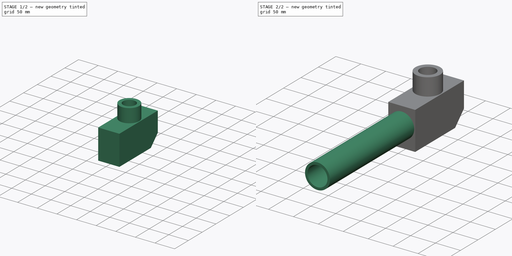
[diagram: build sequence overview — one tinted view per stage of 2, left to right]
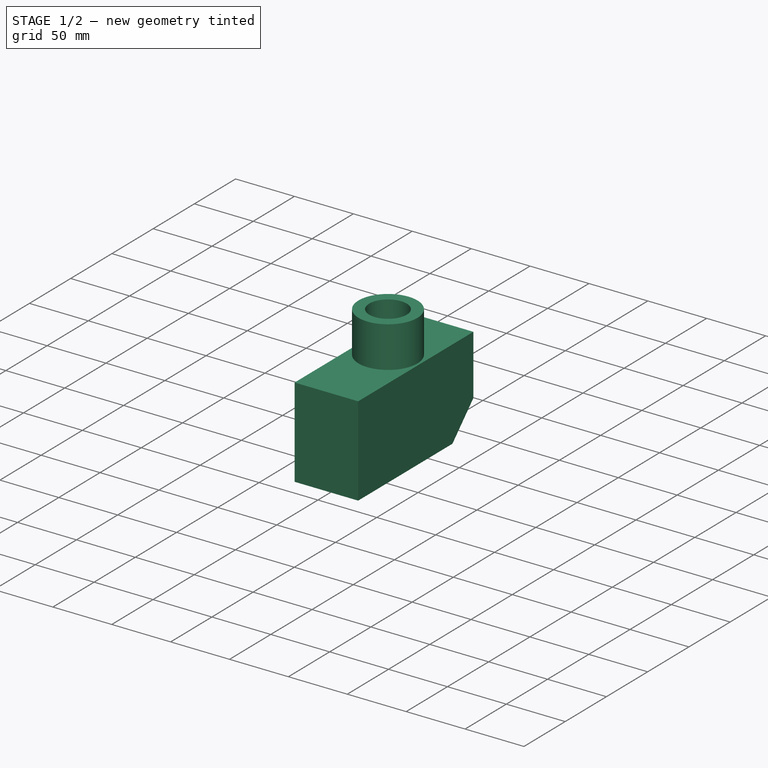
[diagram: stage 1 of 2 — iso view after this stage's code; geometry added in this stage tinted green]
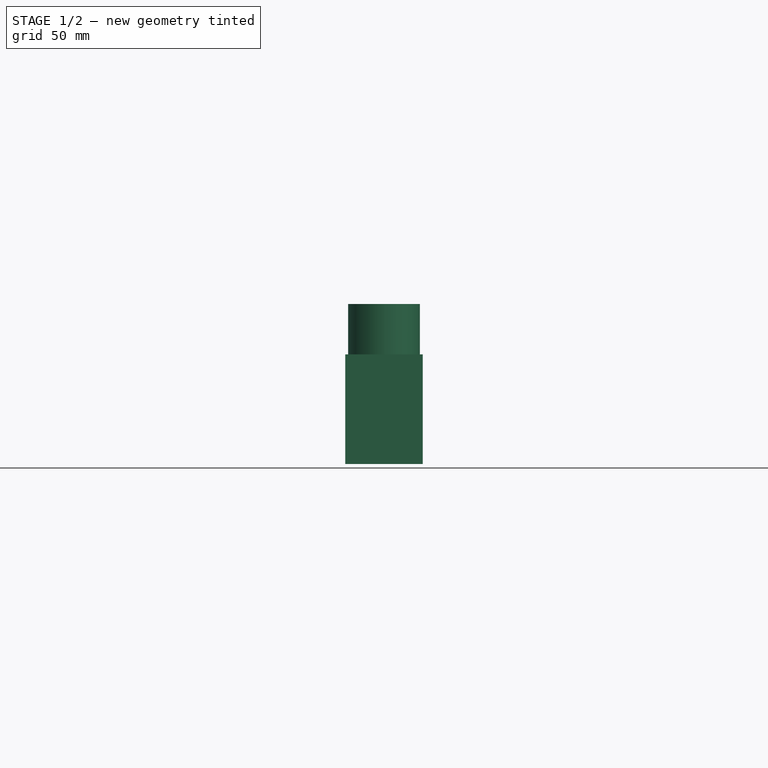
[diagram: stage 1 of 2 — front view after this stage's code; geometry added in this stage tinted green]
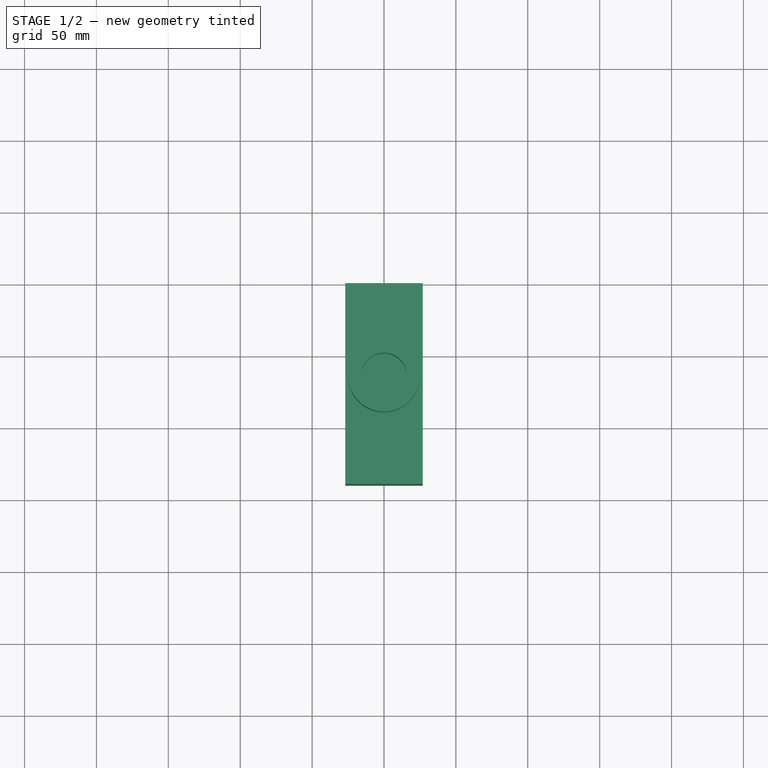
[diagram: stage 1 of 2 — top view after this stage's code; geometry added in this stage tinted green]
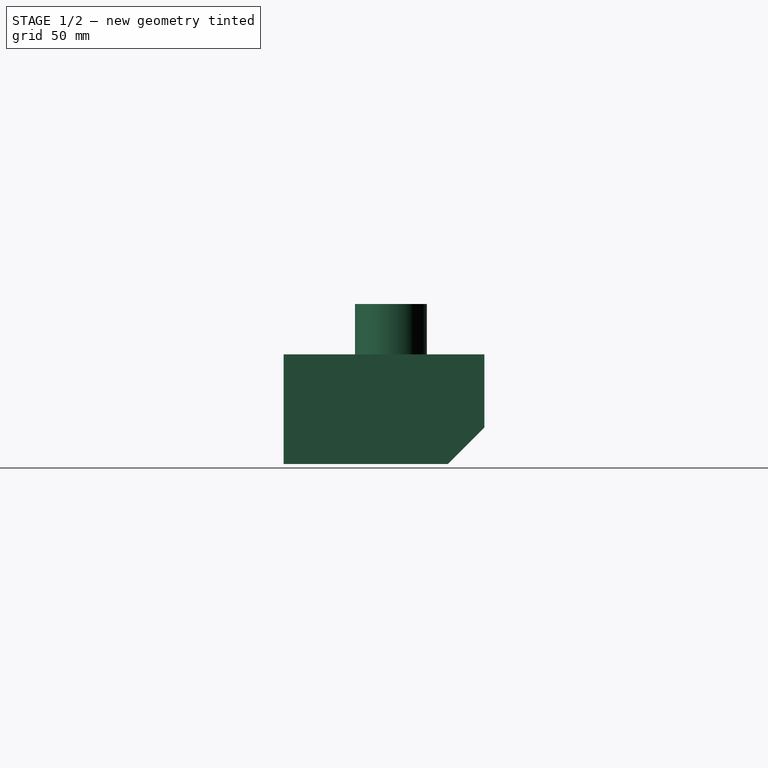
[diagram: stage 1 of 2 — right view after this stage's code; geometry added in this stage tinted green]
FCSTD DOCUMENT  (FreeCAD 0.19R24291 (Git))
Label: PST_Only
License: All rights reserved
LicenseURL: http://en.wikipedia.org/wiki/All_rights_reserved
objects: Sketcher::SketchObject×4, PartDesign::Pad×3, Image::ImagePlane×1, Spreadsheet::Sheet×1, PartDesign::Pocket×1, PartDesign::Body×1
note: 13 computed .brp shape members not serialized (recipe doc carries the construction recipe); baked Part::Feature solids carry a one-line shape summary decoded from their .brp

FEATURE [Image::ImagePlane] ImagePlane001
  Placement = pos=(0,-305,0) rot=(0.57735,0.57735,0.57735;2.0944rad)
  XSize = 640.339
  YSize = 246.284
FEATURE [Sketcher::SketchObject] Sketch
  FullyConstrained = false
  MapMode = 5
  Placement = pos=(0,0,0) rot=(0.57735,0.57735,0.57735;2.0944rad)
  Support = -> [YZ_Plane]
  expr: Constraints[9] = <<Spreadsheet>>.BodyHeight
  expr: .Constraints.BodyLength = <<Spreadsheet>>.BodyLength
  sketch-geometry (5):
    g0: LineSegment StartX=-25.4 StartY=-76.2 StartZ=0 EndX=-139.7 EndY=-76.2 EndZ=0
    g1: LineSegment StartX=-139.7 StartY=-76.2 StartZ=0 EndX=-139.7 EndY=0 EndZ=0
    g2: LineSegment StartX=-139.7 StartY=0 StartZ=0 EndX=0 EndY=0 EndZ=0
    g3: LineSegment StartX=0 StartY=0 StartZ=0 EndX=0 EndY=-50.8 EndZ=0
    g4: LineSegment StartX=0 StartY=-50.8 StartZ=0 EndX=-25.4 EndY=-76.2 EndZ=0
  constraints (12):
    c: Coincident(g0,g1)
    c: Coincident(g1,g2)
    c: Coincident(g2,g3)
    c: Horizontal(g0)
    c: Horizontal(g2)
    c: Vertical(g1)
    c: Vertical(g3)
    c: DistanceX(g2,g2) = 139.7  'BodyLength'
    c: Coincident(g2,g-1)
    c: DistanceY(g1,g1) = 76.2
    c: Coincident(g3,g4)
    c: Coincident(g0,g4)
FEATURE [PartDesign::Pad] Pad  label="PadBody"
  Direction = (1,1,1)
  Length = 53.975
  Length2 = 100
  Midplane = true
  Placement = pos=(0,0,0) rot=(0.57735,0.57735,0.57735;2.0944rad)
  Profile = -> Sketch
  Type = 0
  expr: Length = <<Spreadsheet>>.BodyWidth
FEATURE [Spreadsheet::Sheet] Spreadsheet
  cells = A6=CoronadoPST; A7=BodyLength; B7(BodyLength)==5.5 * 25.4mm; A8=BodyHeight; B8(BodyHeight)==3 * 25.4mm; A9=BodyWidth; B9(BodyWidth)==2.125 * 25.4mm; A10=TubeDiamter; B10(TubeDiamter)==50mm; A11=TubeLength; B11(TubeLength)==15 * 25.4mm; A12=EyePieceHolderID; B12(EyePieceHolderID)==31.85mm; C12=Eye Piece OD deal is 31.75; A13=EyePieceHolderOD; B13(EyePieceHolderOD)==50mm; A14=EyePieceFromRear; B14(EyePieceFromRear)==65mm; C14=7; A15=TubeOD; B15(TubeOD)==50mm; A16=TubeID; B16(TubeID)==40mm; A17=TubeOffsetUp; B17(TubeOffsetUp)==50mm; A18=OverallLength; B18(OverallLength)==15 * 25.4mm
FEATURE [Sketcher::SketchObject] Sketch001
  FullyConstrained = false
  MapMode = 5
  Placement = pos=(0,0,6e-16) rot=(0,0,-1;1.5708rad)
  Support = -> [Pad]
  expr: Constraints[3] = <<Spreadsheet>>.EyePieceFromRear
  expr: Constraints[2] = <<Spreadsheet>>.EyePieceHolderOD
  expr: Constraints[0] = <<Spreadsheet>>.EyePieceHolderID
  sketch-geometry (2):
    g0: Circle CenterX=65 CenterY=0 CenterZ=0 NormalX=0 NormalY=0 NormalZ=1 AngleXU=0 Radius=15.925
    g1: Circle CenterX=65 CenterY=0 CenterZ=0 NormalX=0 NormalY=0 NormalZ=1 AngleXU=0 Radius=25
  constraints (4):
    c: Diameter(g0) = 31.85
    c: Coincident(g1,g0)
    c: Diameter(g1) = 50
    c: DistanceX(g-1,g0) = 65
FEATURE [PartDesign::Pad] Pad001  label="PadEyePieceHolder"
  BaseFeature = -> Pad
  Direction = (1,1,1)
  Length = 35
  Length2 = 100
  Placement = pos=(0,0,0) rot=(0.57735,0.57735,0.57735;2.0944rad)
  Profile = -> Sketch001
  Type = 0
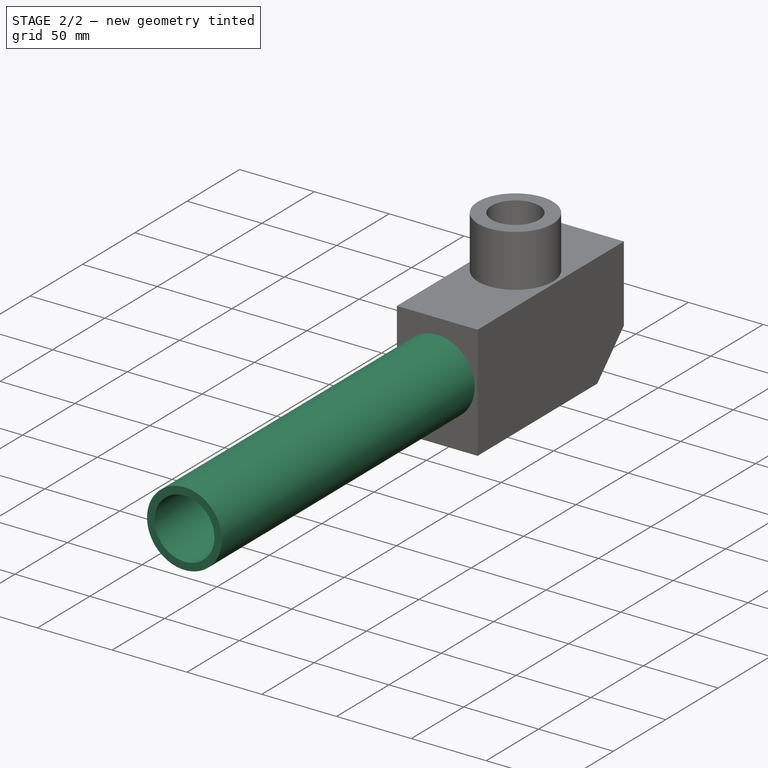
[diagram: stage 2 of 2 — iso view after this stage's code; geometry added in this stage tinted green]
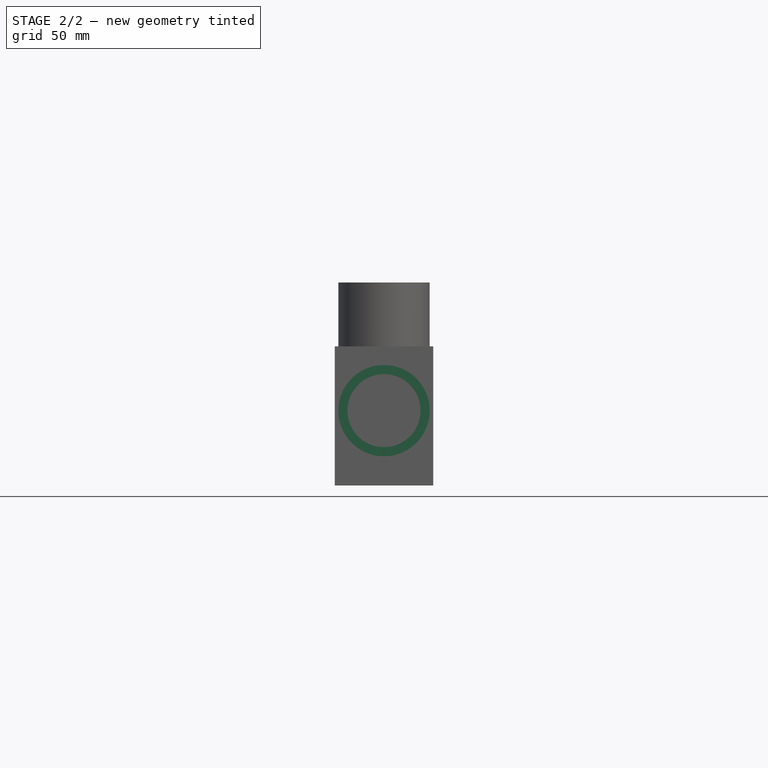
[diagram: stage 2 of 2 — front view after this stage's code; geometry added in this stage tinted green]
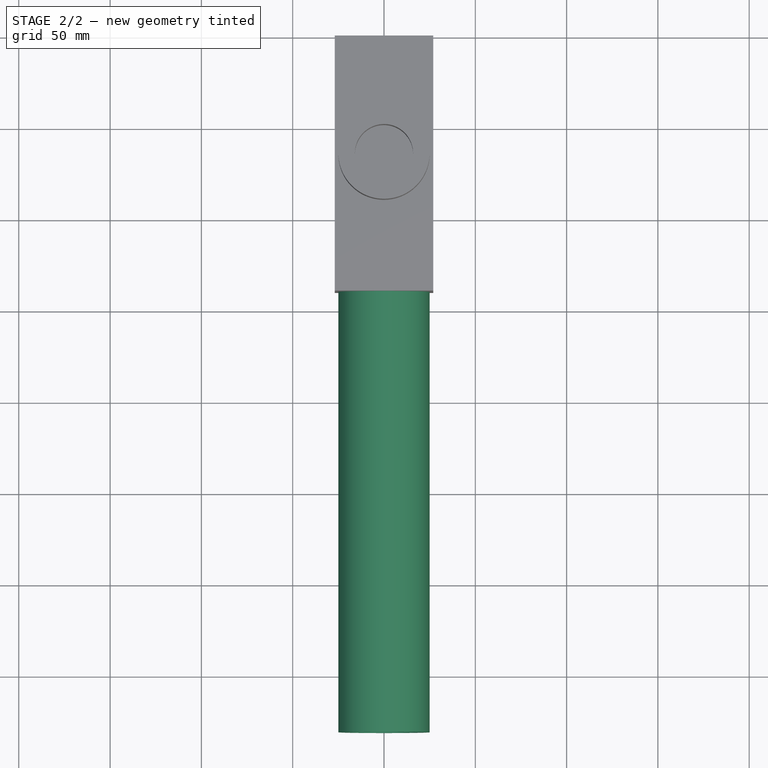
[diagram: stage 2 of 2 — top view after this stage's code; geometry added in this stage tinted green]
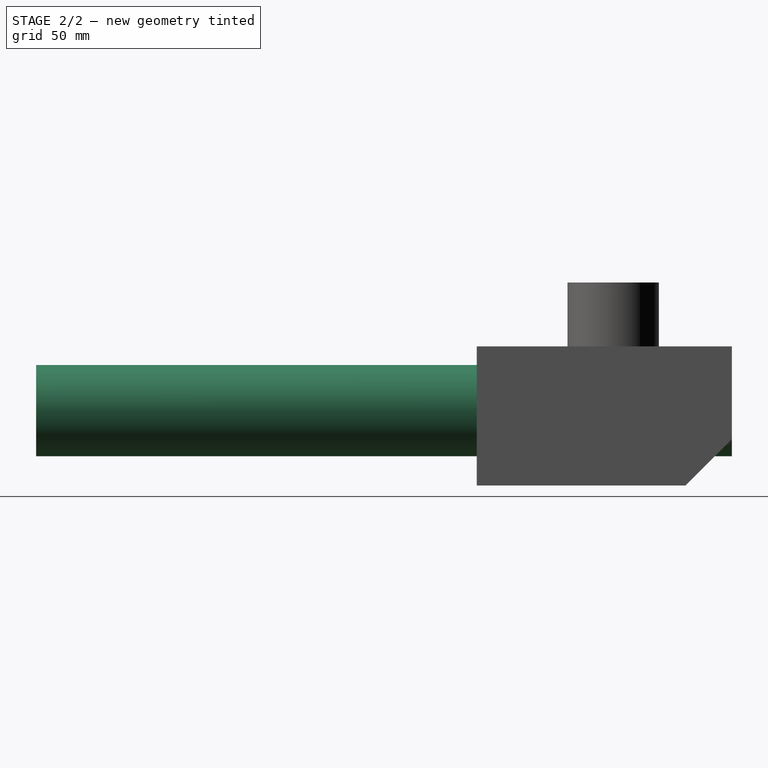
[diagram: stage 2 of 2 — right view after this stage's code; geometry added in this stage tinted green]
FEATURE [Sketcher::SketchObject] Sketch002
  FullyConstrained = false
  MapMode = 5
  Placement = pos=(0,0,0) rot=(1,0,0;1.5708rad)
  Support = -> [XZ_Plane]
  expr: Constraints[3] = <<Spreadsheet>>.TubeOD
  expr: Constraints[2] = <<Spreadsheet>>.TubeID
  sketch-geometry (2):
    g0: Circle CenterX=0 CenterY=-35.1944 CenterZ=0 NormalX=0 NormalY=0 NormalZ=1 AngleXU=0 Radius=20
    g1: Circle CenterX=0 CenterY=-35.1944 CenterZ=0 NormalX=0 NormalY=0 NormalZ=1 AngleXU=0 Radius=25
  constraints (4):
    c: PointOnObject(g0,g-2)
    c: Coincident(g1,g0)
    c: Diameter(g0) = 40
    c: Diameter(g1) = 50
FEATURE [PartDesign::Pad] Pad002  label="PadTubeOverall"
  BaseFeature = -> Pad001
  Direction = (1,1,1)
  Length = 381
  Length2 = 100
  Placement = pos=(0,0,0) rot=(0.57735,0.57735,0.57735;2.0944rad)
  Profile = -> Sketch002
  Type = 0
  expr: Length = <<Spreadsheet>>.OverallLength
FEATURE [Sketcher::SketchObject] Sketch003
  FullyConstrained = true
  MapMode = 5
  Placement = pos=(2.13e-14,-3.35e-14,-76.2) rot=(0.707107,0.707107,0;3.14159rad)
  Support = -> [Pad002]
  sketch-geometry (2):
    g0: Circle CenterX=-127 CenterY=0 CenterZ=0 NormalX=0 NormalY=0 NormalZ=1 AngleXU=0 Radius=3.175
    g1: Circle CenterX=-95.25 CenterY=0 CenterZ=0 NormalX=0 NormalY=0 NormalZ=1 AngleXU=0 Radius=3.175
  constraints (6):
    c: Horizontal(g0,g-1)
    c: Horizontal(g1,g-1)
    c: DistanceX(g0,g-1) = 127
    c: DistanceX(g1,g-1) = 95.25
    c: Diameter(g0) = 6.35
    c: Equal(g0,g1)
FEATURE [PartDesign::Pocket] Pocket
  BaseFeature = -> Pad002
  Length = 12.7
  Length2 = 100
  Placement = pos=(0,0,0) rot=(0.57735,0.57735,0.57735;2.0944rad)
  Profile = -> Sketch003
  Type = 0
FEATURE [PartDesign::Body] Body  label="EntirePST"
  Group = -> [Sketch,Pad,Sketch001,Pad001,Sketch002,Pad002,Sketch003,Pocket]
  Origin = -> Origin
  Tip = -> Pocket
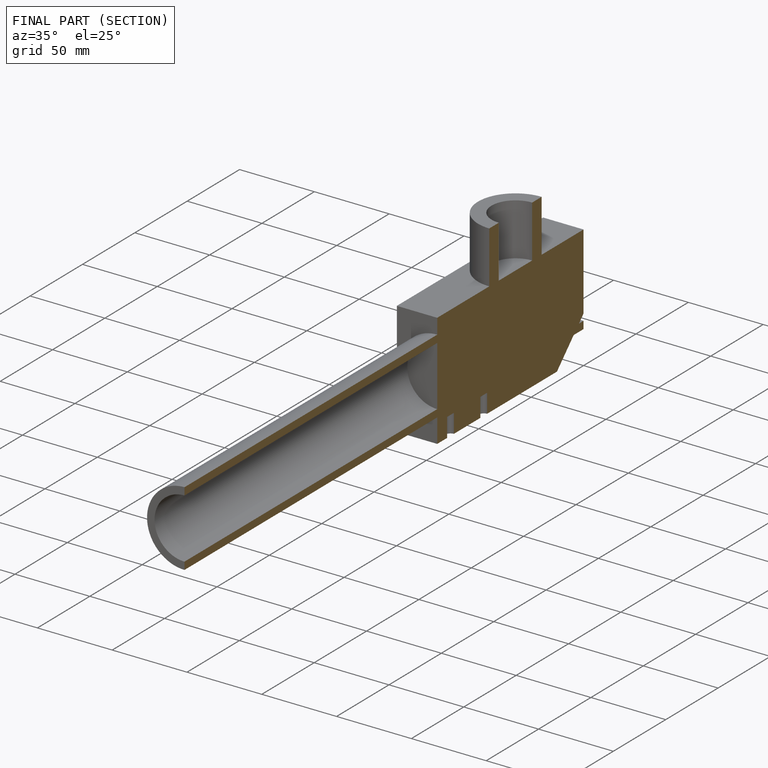
[diagram: finished part — half-section view (interior)]
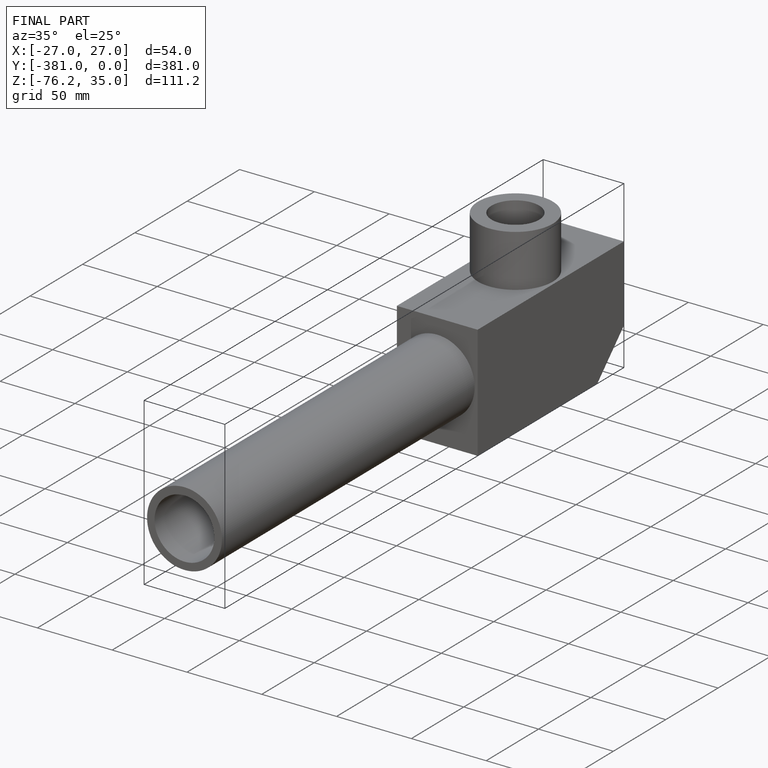
[diagram: finished part — iso view with bounding-box wireframe]
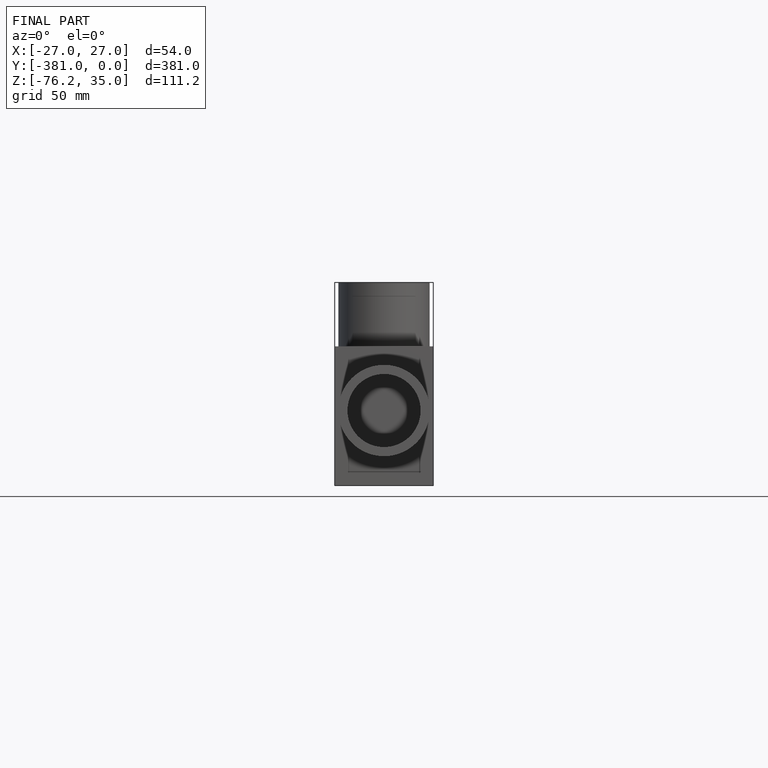
[diagram: finished part — front view with bounding-box wireframe]
